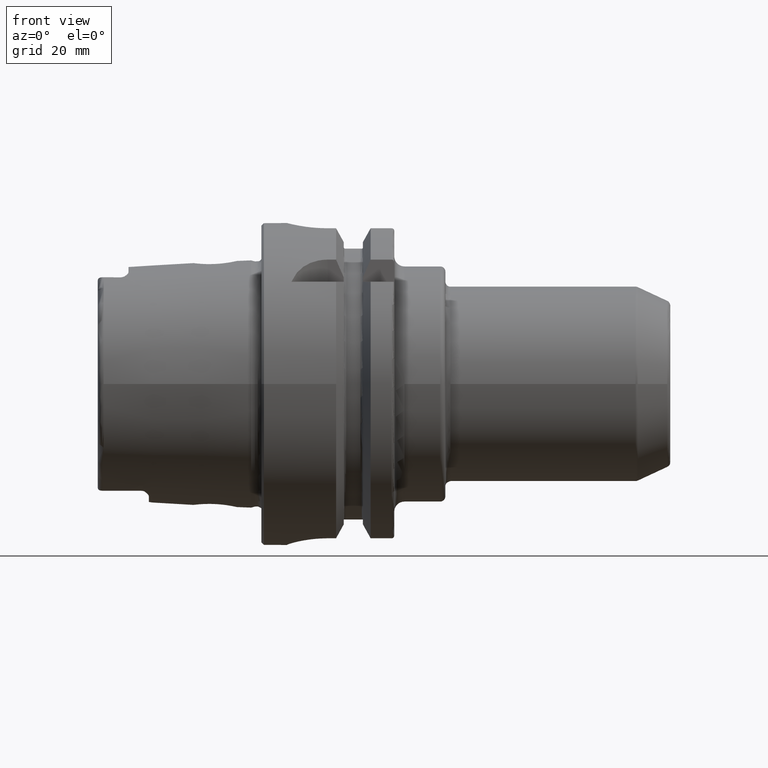
[diagram: clean part render]
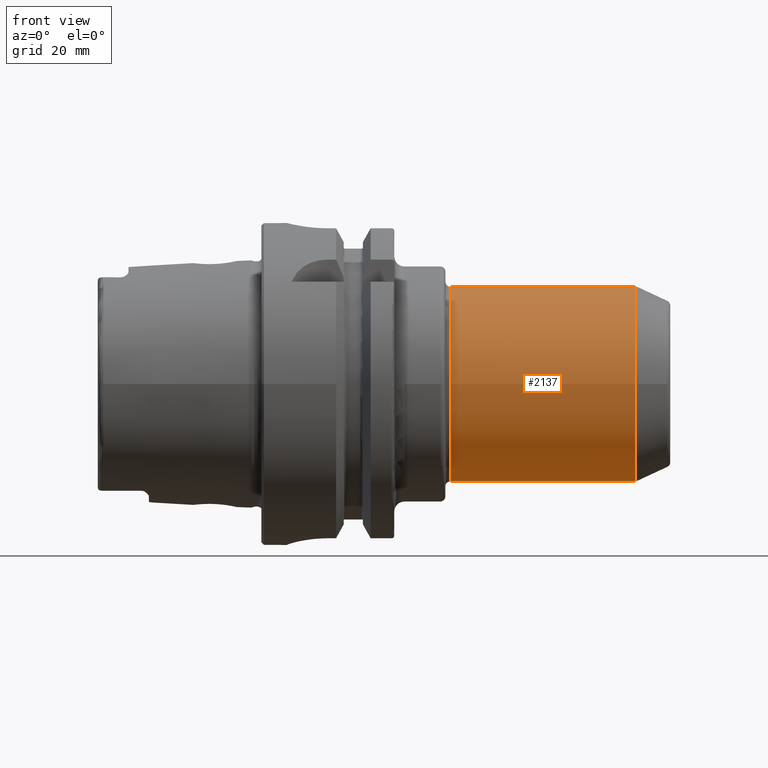
[diagram: same view with one face highlighted and labeled with its STEP entity id]
A machine part, front view. The second image highlights one B-rep face of the part: STEP entity #2137.
In plain terms, the highlighted cylindrical surface (bore or boss wall) has radius 19.05 mm, axis along (1, 0, 0).
Its self-contained STEP definition (entity closure, byte-faithful):
#36=B_SPLINE_CURVE_WITH_KNOTS('',3,(#3295,#3296,#3297,#3298,#3299,#3300,
#3301,#3302,#3303,#3304,#3305,#3306,#3307,#3308,#3309,#3310,#3311,#3312,
#3313,#3314,#3315,#3316,#3317,#3318,#3319,#3320,#3321,#3322,#3323,#3324,
#3325),.UNSPECIFIED.,.T.,.F.,(4,1,1,1,1,1,1,1,1,1,1,1,1,1,1,1,1,1,1,1,1,
1,1,1,1,1,1,1,4),(-6.0136062448129,-5.82951625772679,-5.76815292869808,
-5.64542627064068,-5.52269961258327,-5.46133628355457,-5.33860962549716,
-5.27724629646846,-5.18520130292541,-5.03179298035365,-5.0011113158393,
-4.90906632229624,-4.78633966423884,-4.66361300618143,-4.54088634812402,
-4.37725080404748,-4.27497858899964,-4.21361525997094,-4.13179748793267,
-4.0499797158944,-3.92725305783699,-3.72270862774132,-3.55907308366478,
-3.31361976754996,-3.25225643852126,-3.06816645143515,-2.94543979337775,
-2.82271313532034,-2.57725981920553),.UNSPECIFIED.);
#129=FACE_BOUND('',#379,.T.);
#197=CYLINDRICAL_SURFACE('',#2312,19.05);
#245=FACE_OUTER_BOUND('',#378,.T.);
#378=EDGE_LOOP('',(#1491,#1492,#1493,#1494,#1495,#1496));
#379=EDGE_LOOP('',(#1497));
#522=LINE('',#3292,#634);
#634=VECTOR('',#2642,19.05);
#750=CIRCLE('',#2310,19.05);
#751=CIRCLE('',#2311,19.05);
#752=CIRCLE('',#2313,19.05);
#753=CIRCLE('',#2314,19.05);
#899=VERTEX_POINT('',#3283);
#900=VERTEX_POINT('',#3285);
#901=VERTEX_POINT('',#3289);
#902=VERTEX_POINT('',#3290);
#903=VERTEX_POINT('',#3294);
#1128=EDGE_CURVE('',#899,#900,#750,.T.);
#1129=EDGE_CURVE('',#900,#899,#751,.T.);
#1130=EDGE_CURVE('',#901,#902,#752,.T.);
#1131=EDGE_CURVE('',#901,#900,#522,.T.);
#1132=EDGE_CURVE('',#902,#901,#753,.T.);
#1133=EDGE_CURVE('',#903,#903,#36,.T.);
#1491=ORIENTED_EDGE('',*,*,#1130,.F.);
#1492=ORIENTED_EDGE('',*,*,#1131,.T.);
#1493=ORIENTED_EDGE('',*,*,#1128,.F.);
#1494=ORIENTED_EDGE('',*,*,#1129,.F.);
#1495=ORIENTED_EDGE('',*,*,#1131,.F.);
#1496=ORIENTED_EDGE('',*,*,#1132,.F.);
#1497=ORIENTED_EDGE('',*,*,#1133,.F.);
#2137=ADVANCED_FACE('',(#245,#129),#197,.T.);
#2310=AXIS2_PLACEMENT_3D('',#3286,#2634,#2635);
#2311=AXIS2_PLACEMENT_3D('',#3287,#2636,#2637);
#2312=AXIS2_PLACEMENT_3D('',#3288,#2638,#2639);
#2313=AXIS2_PLACEMENT_3D('',#3291,#2640,#2641);
#2314=AXIS2_PLACEMENT_3D('',#3293,#2643,#2644);
#2634=DIRECTION('center_axis',(-1.,0.,0.));
#2635=DIRECTION('ref_axis',(0.,-1.,1.83697019872103E-16));
#2636=DIRECTION('center_axis',(-1.,0.,0.));
#2637=DIRECTION('ref_axis',(0.,-1.,1.83697019872103E-16));
#2638=DIRECTION('center_axis',(1.,0.,0.));
#2639=DIRECTION('ref_axis',(0.,1.,0.));
#2640=DIRECTION('center_axis',(1.,0.,0.));
#2641=DIRECTION('ref_axis',(0.,-1.,1.83697019872103E-16));
#2642=DIRECTION('',(-1.,0.,0.));
#2643=DIRECTION('center_axis',(1.,0.,0.));
#2644=DIRECTION('ref_axis',(0.,-1.,1.83697019872103E-16));
#3283=CARTESIAN_POINT('',(37.,-2.33295215237571E-15,19.05));
#3285=CARTESIAN_POINT('',(37.,-19.05,-2.33295215237571E-15));
#3286=CARTESIAN_POINT('Origin',(37.,0.,0.));
#3287=CARTESIAN_POINT('Origin',(37.,0.,0.));
#3288=CARTESIAN_POINT('Origin',(54.7296269462229,0.,0.));
#3289=CARTESIAN_POINT('',(73.2375592298029,-19.05,-2.33295215237571E-15));
#3290=CARTESIAN_POINT('',(73.2375592298029,-2.33295215237571E-15,19.05));
#3291=CARTESIAN_POINT('Origin',(73.2375592298029,0.,0.));
#3292=CARTESIAN_POINT('',(54.7296269462229,-19.05,-2.33295215237571E-15));
#3293=CARTESIAN_POINT('Origin',(73.2375592298029,0.,0.));
#3294=CARTESIAN_POINT('',(50.9358,19.05,-8.32667268468867E-16));
#3295=CARTESIAN_POINT('Ctrl Pts',(50.9358,19.05,-8.32667268468867E-16));
#3296=CARTESIAN_POINT('Ctrl Pts',(50.9358,19.05,0.721968675740789));
#3297=CARTESIAN_POINT('Ctrl Pts',(51.1018411317973,18.9904054654075,1.73717858637698));
#3298=CARTESIAN_POINT('Ctrl Pts',(51.6848094973134,18.7995939645739,3.13771974750417));
#3299=CARTESIAN_POINT('Ctrl Pts',(52.3688053248478,18.5931816166715,4.20059901573478));
#3300=CARTESIAN_POINT('Ctrl Pts',(53.2048872257543,18.3790739451055,5.0265014124968));
#3301=CARTESIAN_POINT('Ctrl Pts',(54.2170534724668,18.166647201124,5.74641829310024));
#3302=CARTESIAN_POINT('Ctrl Pts',(55.1364286562557,18.0191295379515,6.18536498366983));
#3303=CARTESIAN_POINT('Ctrl Pts',(56.2428532343622,17.9082416615709,6.49749705652584));
#3304=CARTESIAN_POINT('Ctrl Pts',(57.4845716020798,17.8461690007949,6.66408009472983));
#3305=CARTESIAN_POINT('Ctrl Pts',(58.5816198965958,17.8799260246187,6.57553209713647));
#3306=CARTESIAN_POINT('Ctrl Pts',(59.6963061660867,17.9798973335262,6.29598195993163));
#3307=CARTESIAN_POINT('Ctrl Pts',(60.6497682609876,18.1042514287454,5.93817247154199));
#3308=CARTESIAN_POINT('Ctrl Pts',(61.8267762342444,18.3359505821724,5.19543283435121));
#3309=CARTESIAN_POINT('Ctrl Pts',(62.8316256369866,18.5932510523166,4.1975203577657));
#3310=CARTESIAN_POINT('Ctrl Pts',(63.7443036245373,18.8695058939297,2.78951031621563));
#3311=CARTESIAN_POINT('Ctrl Pts',(64.2183464013874,19.0341375634213,1.21847289984252));
#3312=CARTESIAN_POINT('Ctrl Pts',(64.2874171290628,19.0580275358685,-0.0811346088021393));
#3313=CARTESIAN_POINT('Ctrl Pts',(64.1988035005122,19.02707711746,-1.05825675046978));
#3314=CARTESIAN_POINT('Ctrl Pts',(63.9940605955286,18.956719439339,-1.96624022583465));
#3315=CARTESIAN_POINT('Ctrl Pts',(63.5586037068474,18.8126021589388,-3.07167978849774));
#3316=CARTESIAN_POINT('Ctrl Pts',(62.6581385927508,18.5421522157664,-4.46580957246367));
#3317=CARTESIAN_POINT('Ctrl Pts',(61.2009069499537,18.1805477798162,-5.7273315876415));
#3318=CARTESIAN_POINT('Ctrl Pts',(58.7586842271385,17.8436719931651,-6.68037404959195));
#3319=CARTESIAN_POINT('Ctrl Pts',(56.8570079883112,17.847679020192,-6.66275087466163));
#3320=CARTESIAN_POINT('Ctrl Pts',(54.8907929798964,18.0431633165066,-6.11955897081989));
#3321=CARTESIAN_POINT('Ctrl Pts',(53.5407144358995,18.2926323029775,-5.3622770715072));
#3322=CARTESIAN_POINT('Ctrl Pts',(52.3689542182898,18.5926141954283,-4.19876236566452));
#3323=CARTESIAN_POINT('Ctrl Pts',(51.2722236340453,18.9258446301019,-2.50512805724974));
#3324=CARTESIAN_POINT('Ctrl Pts',(50.9358,19.05,-0.962624900987705));
#3325=CARTESIAN_POINT('Ctrl Pts',(50.9358,19.05,8.32667268468867E-16));